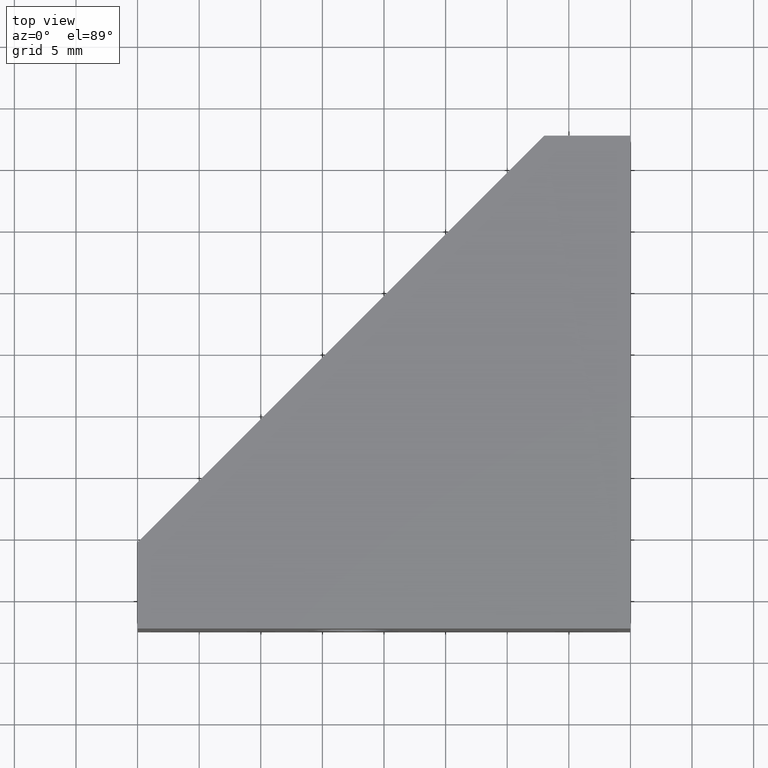
[diagram: clean part render]
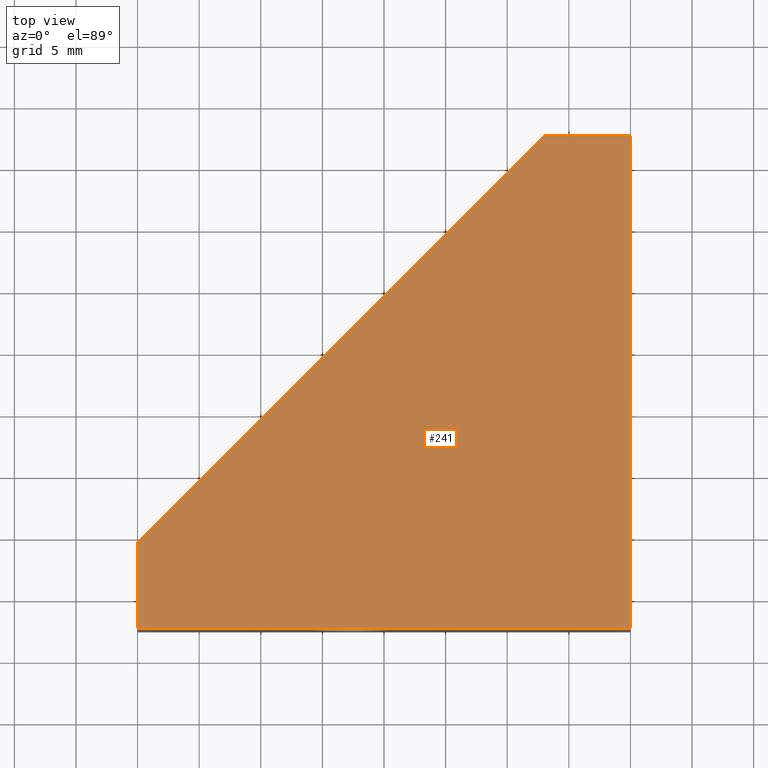
[diagram: same view with one face highlighted and labeled with its STEP entity id]
A machine part, top view. The second image highlights one B-rep face of the part: STEP entity #241.
In plain terms, the highlighted planar face has unit normal (0, 0, 1).
Its self-contained STEP definition (entity closure, byte-faithful):
#22=LINE('',#362,#48);
#26=LINE('',#369,#52);
#27=LINE('',#371,#53);
#28=LINE('',#373,#54);
#29=LINE('',#374,#55);
#48=VECTOR('',#296,46.6690475581256);
#52=VECTOR('',#304,6.99999999997181);
#53=VECTOR('',#305,39.9999999998399);
#54=VECTOR('',#306,39.9999999998399);
#55=VECTOR('',#307,6.99999999997181);
#71=PLANE('',#261);
#91=FACE_OUTER_BOUND('',#109,.T.);
#109=EDGE_LOOP('',(#194,#195,#196,#197,#198));
#133=VERTEX_POINT('',#360);
#134=VERTEX_POINT('',#361);
#135=VERTEX_POINT('',#368);
#136=VERTEX_POINT('',#370);
#137=VERTEX_POINT('',#372);
#154=EDGE_CURVE('',#133,#134,#22,.T.);
#158=EDGE_CURVE('',#134,#135,#26,.T.);
#159=EDGE_CURVE('',#135,#136,#27,.T.);
#160=EDGE_CURVE('',#136,#137,#28,.T.);
#161=EDGE_CURVE('',#137,#133,#29,.T.);
#194=ORIENTED_EDGE('',*,*,#154,.T.);
#195=ORIENTED_EDGE('',*,*,#158,.T.);
#196=ORIENTED_EDGE('',*,*,#159,.T.);
#197=ORIENTED_EDGE('',*,*,#160,.T.);
#198=ORIENTED_EDGE('',*,*,#161,.T.);
#241=ADVANCED_FACE('',(#91),#71,.T.);
#261=AXIS2_PLACEMENT_3D('',#367,#302,#303);
#296=DIRECTION('',(-0.707106781186548,-0.707106781186548,0.));
#302=DIRECTION('center_axis',(0.,0.,1.));
#303=DIRECTION('ref_axis',(1.,0.,0.));
#304=DIRECTION('',(0.,-1.,0.));
#305=DIRECTION('',(1.,0.,0.));
#306=DIRECTION('',(0.,1.,0.));
#307=DIRECTION('',(-1.,0.,0.));
#360=CARTESIAN_POINT('',(-6.99999999997181,17.49999999993,9.00000000003593));
#361=CARTESIAN_POINT('',(-39.9999999998399,-15.4999999999382,9.00000000003593));
#362=CARTESIAN_POINT('',(-6.99999999997181,17.49999999993,9.00000000003593));
#367=CARTESIAN_POINT('Origin',(-40.0000433069272,-22.5000433069972,9.00000000003593));
#368=CARTESIAN_POINT('',(-39.9999999998399,-22.49999999991,9.00000000003593));
#369=CARTESIAN_POINT('',(-39.9999999998399,-15.4999999999382,9.00000000003593));
#370=CARTESIAN_POINT('',(0.,-22.49999999991,9.00000000003593));
#371=CARTESIAN_POINT('',(-39.9999999998399,-22.49999999991,9.00000000003593));
#372=CARTESIAN_POINT('',(0.,17.49999999993,9.00000000003593));
#373=CARTESIAN_POINT('',(0.,-22.49999999991,9.00000000003593));
#374=CARTESIAN_POINT('',(0.,17.49999999993,9.00000000003593));